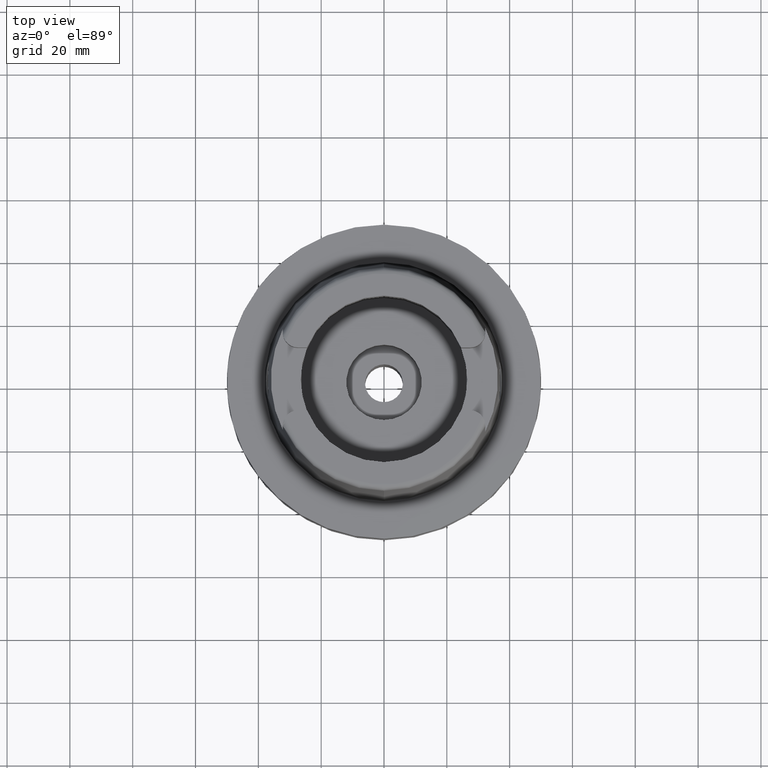
[diagram: clean part render]
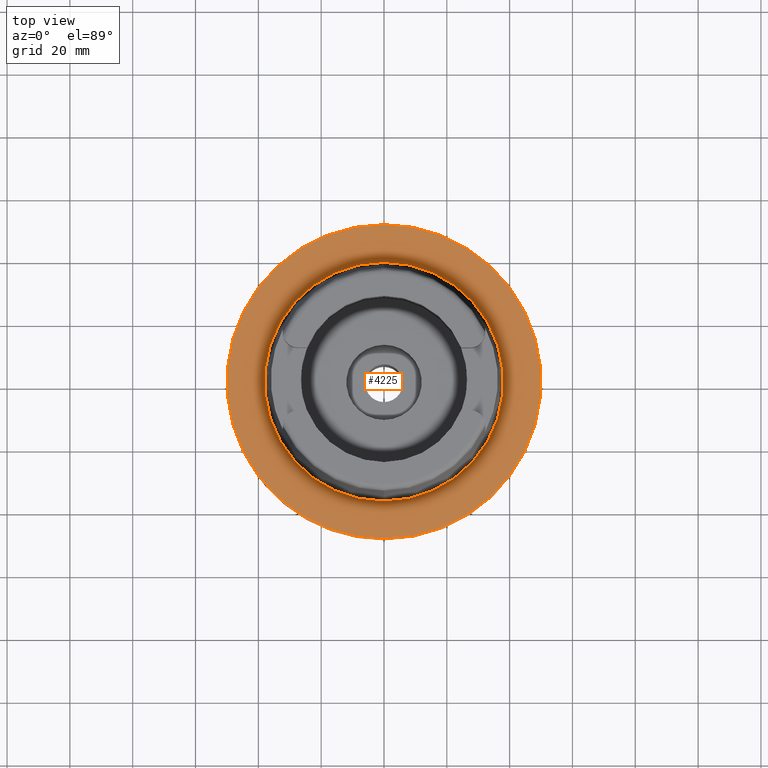
[diagram: same view with one face highlighted and labeled with its STEP entity id]
A machine part, top view. The second image highlights one B-rep face of the part: STEP entity #4225.
In plain terms, the highlighted planar face has unit normal (0, 0, 1).
Its self-contained STEP definition (entity closure, byte-faithful):
#2002=CARTESIAN_POINT('',(0.E0,0.E0,0.E0));
#2003=DIRECTION('',(0.E0,0.E0,-1.E0));
#2004=DIRECTION('',(0.E0,-1.E0,0.E0));
#2005=AXIS2_PLACEMENT_3D('',#2002,#2003,#2004);
#2010=CARTESIAN_POINT('',(0.E0,0.E0,0.E0));
#2011=DIRECTION('',(0.E0,0.E0,-1.E0));
#2012=DIRECTION('',(0.E0,1.E0,0.E0));
#2013=AXIS2_PLACEMENT_3D('',#2010,#2011,#2012);
#2018=CARTESIAN_POINT('',(0.E0,0.E0,1.023181539495E-12));
#2019=DIRECTION('',(0.E0,0.E0,1.E0));
#2020=DIRECTION('',(0.E0,-1.E0,0.E0));
#2021=AXIS2_PLACEMENT_3D('',#2018,#2019,#2020);
#2026=CARTESIAN_POINT('',(0.E0,0.E0,1.023181539495E-12));
#2027=DIRECTION('',(0.E0,0.E0,1.E0));
#2028=DIRECTION('',(0.E0,1.E0,0.E0));
#2029=AXIS2_PLACEMENT_3D('',#2026,#2027,#2028);
#2466=CARTESIAN_POINT('',(0.E0,-3.800001658252E1,6.821210263297E-13));
#2467=VERTEX_POINT('',#2466);
#2468=CARTESIAN_POINT('',(0.E0,3.800001658252E1,1.023181539495E-12));
#2469=VERTEX_POINT('',#2468);
#2727=CARTESIAN_POINT('',(0.E0,5.E1,0.E0));
#2728=VERTEX_POINT('',#2727);
#2729=CARTESIAN_POINT('',(0.E0,-5.E1,0.E0));
#2730=VERTEX_POINT('',#2729);
#4212=CARTESIAN_POINT('',(0.E0,0.E0,0.E0));
#4213=DIRECTION('',(0.E0,0.E0,1.E0));
#4214=DIRECTION('',(0.E0,1.E0,0.E0));
#4215=AXIS2_PLACEMENT_3D('',#4212,#4213,#4214);
#4216=PLANE('',#4215);
#4217=ORIENTED_EDGE('',*,*,#3977,.T.);
#4218=ORIENTED_EDGE('',*,*,#4086,.T.);
#4219=EDGE_LOOP('',(#4217,#4218));
#4220=FACE_OUTER_BOUND('',#4219,.F.);
#4221=ORIENTED_EDGE('',*,*,#2981,.T.);
#4222=ORIENTED_EDGE('',*,*,#2952,.T.);
#4223=EDGE_LOOP('',(#4221,#4222));
#4224=FACE_BOUND('',#4223,.F.);
#2006=CIRCLE('',#2005,5.E1);
#2014=CIRCLE('',#2013,5.E1);
#2022=CIRCLE('',#2021,3.800001658252E1);
#2030=CIRCLE('',#2029,3.800001658252E1);
#2952=EDGE_CURVE('',#2469,#2467,#2030,.T.);
#2981=EDGE_CURVE('',#2467,#2469,#2022,.T.);
#3977=EDGE_CURVE('',#2730,#2728,#2006,.T.);
#4086=EDGE_CURVE('',#2728,#2730,#2014,.T.);
#4225=ADVANCED_FACE('',(#4220,#4224),#4216,.T.);